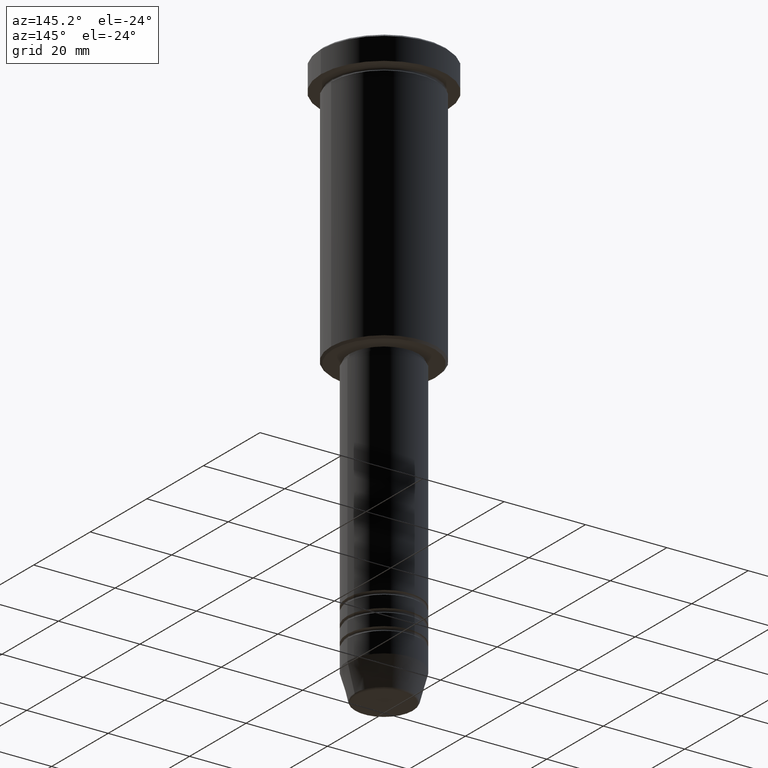
[diagram: clean part render]
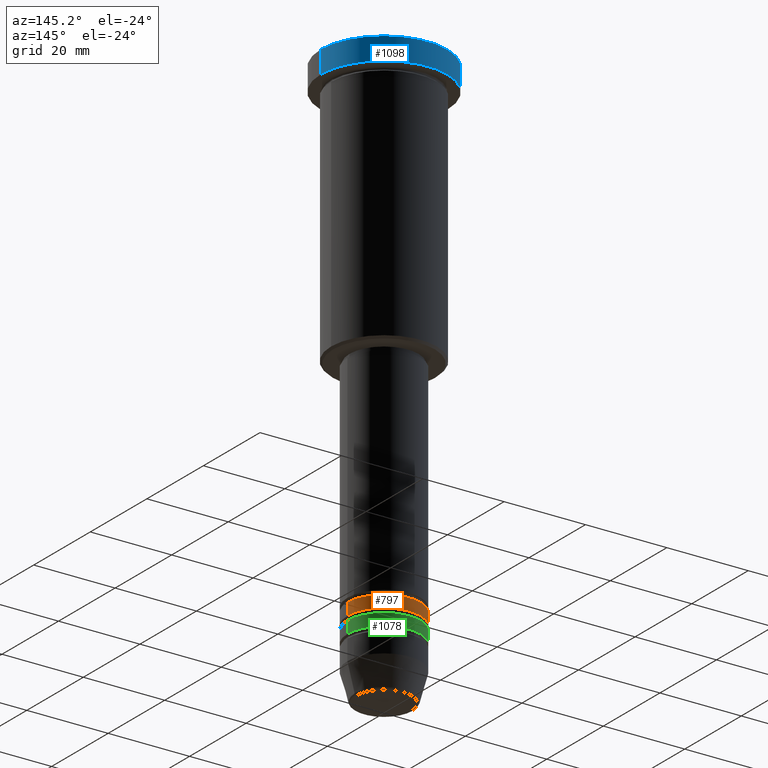
[diagram: same view with three faces highlighted in distinct colors, each labeled with its STEP entity id]
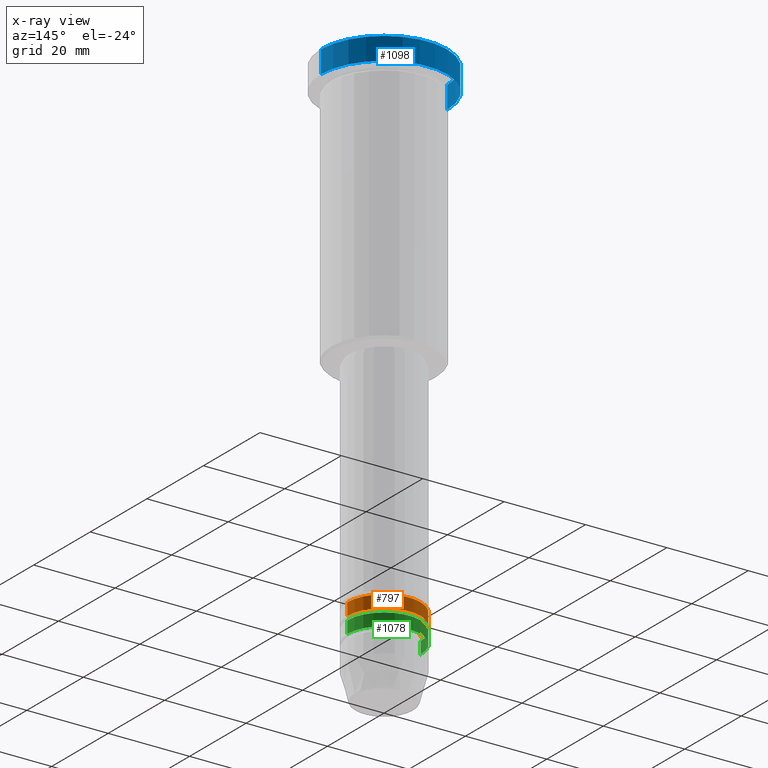
[diagram: x-ray of the same camera — body ghosted, the three highlighted faces saturated]
A machine part, auxiliary view with three faces highlighted in distinct colors.
The next image is the same camera in x-ray (body ghosted, the three faces saturated) — at least one of them is partly hidden behind the body in this view.
Their STEP definitions:

[orange] entity #797 — the highlighted cylindrical surface (partial cylindrical patch) has radius 9 mm, axis along (-0, -0, 1).
#11 = FACE_OUTER_BOUND ( 'NONE', #435, .T. ) ;
#99 = ORIENTED_EDGE ( 'NONE', *, *, #1134, .F. ) ;
#106 = AXIS2_PLACEMENT_3D ( 'NONE', #918, #674, #195 ) ;
#117 = DIRECTION ( 'NONE',  ( -0.000000000000000000, -0.000000000000000000, 1.000000000000000000 ) ) ;
#170 = AXIS2_PLACEMENT_3D ( 'NONE', #890, #734, #725 ) ;
#195 = DIRECTION ( 'NONE',  ( 1.000000000000000000, 0.000000000000000000, 0.000000000000000000 ) ) ;
#324 = DIRECTION ( 'NONE',  ( -0.000000000000000000, -0.000000000000000000, 1.000000000000000000 ) ) ;
#327 = VERTEX_POINT ( 'NONE', #911 ) ;
#352 = VECTOR ( 'NONE', #358, 1000.000000000000000 ) ;
#356 = ORIENTED_EDGE ( 'NONE', *, *, #789, .T. ) ;
#358 = DIRECTION ( 'NONE',  ( -0.000000000000000000, -0.000000000000000000, 1.000000000000000000 ) ) ;
#435 = EDGE_LOOP ( 'NONE', ( #1117, #356, #99, #726 ) ) ;
#511 = CIRCLE ( 'NONE', #170, 9.000000000000001776 ) ;
#519 = DIRECTION ( 'NONE',  ( 1.000000000000000000, 0.000000000000000000, 0.000000000000000000 ) ) ;
#534 = AXIS2_PLACEMENT_3D ( 'NONE', #1035, #324, #519 ) ;
#540 = LINE ( 'NONE', #718, #352 ) ;
#561 = EDGE_CURVE ( 'NONE', #327, #874, #511, .T. ) ;
#673 = CARTESIAN_POINT ( 'NONE',  ( 9.000000000000000000, 0.000000000000000000, -120.9999999999999005 ) ) ;
#674 = DIRECTION ( 'NONE',  ( -0.000000000000000000, -0.000000000000000000, 1.000000000000000000 ) ) ;
#705 = CARTESIAN_POINT ( 'NONE',  ( -9.000000000000000000, 1.102182119232617714E-15, -120.9999999999999005 ) ) ;
#718 = CARTESIAN_POINT ( 'NONE',  ( 9.000000000000001776, 0.000000000000000000, 0.000000000000000000 ) ) ;
#725 = DIRECTION ( 'NONE',  ( 1.000000000000000000, 0.000000000000000000, 0.000000000000000000 ) ) ;
#726 = ORIENTED_EDGE ( 'NONE', *, *, #850, .F. ) ;
#729 = VECTOR ( 'NONE', #117, 1000.000000000000000 ) ;
#734 = DIRECTION ( 'NONE',  ( -0.000000000000000000, -0.000000000000000000, 1.000000000000000000 ) ) ;
#789 = EDGE_CURVE ( 'NONE', #874, #1154, #929, .T. ) ;
#797 = ADVANCED_FACE ( 'NONE', ( #11 ), #1118, .T. ) ;
#850 = EDGE_CURVE ( 'NONE', #327, #958, #540, .T. ) ;
#874 = VERTEX_POINT ( 'NONE', #1167 ) ;
#890 = CARTESIAN_POINT ( 'NONE',  ( 0.000000000000000000, 0.000000000000000000, -123.9999999999999147 ) ) ;
#911 = CARTESIAN_POINT ( 'NONE',  ( 9.000000000000001776, 0.000000000000000000, -123.9999999999999147 ) ) ;
#918 = CARTESIAN_POINT ( 'NONE',  ( 0.000000000000000000, 0.000000000000000000, 0.000000000000000000 ) ) ;
#929 = LINE ( 'NONE', #1106, #729 ) ;
#958 = VERTEX_POINT ( 'NONE', #673 ) ;
#969 = CIRCLE ( 'NONE', #534, 9.000000000000000000 ) ;
#1035 = CARTESIAN_POINT ( 'NONE',  ( 0.000000000000000000, 0.000000000000000000, -120.9999999999999005 ) ) ;
#1106 = CARTESIAN_POINT ( 'NONE',  ( -9.000000000000001776, 1.102182119232617911E-15, 0.000000000000000000 ) ) ;
#1117 = ORIENTED_EDGE ( 'NONE', *, *, #561, .T. ) ;
#1118 = CYLINDRICAL_SURFACE ( 'NONE', #106, 9.000000000000001776 ) ;
#1134 = EDGE_CURVE ( 'NONE', #958, #1154, #969, .T. ) ;
#1154 = VERTEX_POINT ( 'NONE', #705 ) ;
#1167 = CARTESIAN_POINT ( 'NONE',  ( -9.000000000000001776, 1.102182119232617911E-15, -123.9999999999999147 ) ) ;

[blue] entity #1098 — the highlighted cylindrical surface (partial cylindrical patch) has radius 15.5 mm, axis along (-0, -0, 1).
#8 = ORIENTED_EDGE ( 'NONE', *, *, #65, .T. ) ;
#15 = CARTESIAN_POINT ( 'NONE',  ( -15.50000000000000000, 1.898202538678397557E-15, -0.5000000000000125455 ) ) ;
#53 = CARTESIAN_POINT ( 'NONE',  ( 0.000000000000000000, 0.000000000000000000, 0.000000000000000000 ) ) ;
#65 = EDGE_CURVE ( 'NONE', #724, #470, #922, .T. ) ;
#66 = ORIENTED_EDGE ( 'NONE', *, *, #339, .F. ) ;
#68 = VECTOR ( 'NONE', #1016, 1000.000000000000000 ) ;
#91 = CARTESIAN_POINT ( 'NONE',  ( 15.50000000000000000, 0.000000000000000000, 0.000000000000000000 ) ) ;
#96 = LINE ( 'NONE', #91, #68 ) ;
#97 = ORIENTED_EDGE ( 'NONE', *, *, #504, .T. ) ;
#141 = DIRECTION ( 'NONE',  ( -0.000000000000000000, -0.000000000000000000, 1.000000000000000000 ) ) ;
#145 = CYLINDRICAL_SURFACE ( 'NONE', #354, 15.50000000000000000 ) ;
#164 = VERTEX_POINT ( 'NONE', #762 ) ;
#205 = CIRCLE ( 'NONE', #873, 15.50000000000000000 ) ;
#235 = VERTEX_POINT ( 'NONE', #15 ) ;
#339 = EDGE_CURVE ( 'NONE', #724, #164, #96, .T. ) ;
#354 = AXIS2_PLACEMENT_3D ( 'NONE', #53, #141, #1031 ) ;
#370 = CARTESIAN_POINT ( 'NONE',  ( -15.50000000000000000, 1.898202538678397557E-15, 0.000000000000000000 ) ) ;
#392 = LINE ( 'NONE', #370, #950 ) ;
#470 = VERTEX_POINT ( 'NONE', #1053 ) ;
#504 = EDGE_CURVE ( 'NONE', #235, #164, #205, .T. ) ;
#526 = DIRECTION ( 'NONE',  ( 0.000000000000000000, 0.000000000000000000, -1.000000000000000000 ) ) ;
#601 = FACE_OUTER_BOUND ( 'NONE', #618, .T. ) ;
#618 = EDGE_LOOP ( 'NONE', ( #8, #860, #97, #66 ) ) ;
#671 = DIRECTION ( 'NONE',  ( 1.000000000000000000, 0.000000000000000000, 0.000000000000000000 ) ) ;
#724 = VERTEX_POINT ( 'NONE', #736 ) ;
#732 = DIRECTION ( 'NONE',  ( -0.000000000000000000, -0.000000000000000000, 1.000000000000000000 ) ) ;
#736 = CARTESIAN_POINT ( 'NONE',  ( 15.50000000000000000, 0.000000000000000000, -5.999999999999995559 ) ) ;
#743 = EDGE_CURVE ( 'NONE', #470, #235, #392, .T. ) ;
#762 = CARTESIAN_POINT ( 'NONE',  ( 15.50000000000000000, 0.000000000000000000, -0.5000000000000125455 ) ) ;
#832 = DIRECTION ( 'NONE',  ( -0.000000000000000000, -0.000000000000000000, 1.000000000000000000 ) ) ;
#860 = ORIENTED_EDGE ( 'NONE', *, *, #743, .T. ) ;
#873 = AXIS2_PLACEMENT_3D ( 'NONE', #974, #526, #1007 ) ;
#922 = CIRCLE ( 'NONE', #940, 15.50000000000000000 ) ;
#940 = AXIS2_PLACEMENT_3D ( 'NONE', #1006, #732, #671 ) ;
#950 = VECTOR ( 'NONE', #832, 1000.000000000000000 ) ;
#974 = CARTESIAN_POINT ( 'NONE',  ( 0.000000000000000000, 0.000000000000000000, -0.5000000000000125455 ) ) ;
#1006 = CARTESIAN_POINT ( 'NONE',  ( 0.000000000000000000, 0.000000000000000000, -5.999999999999995559 ) ) ;
#1007 = DIRECTION ( 'NONE',  ( 1.000000000000000000, 0.000000000000000000, 0.000000000000000000 ) ) ;
#1016 = DIRECTION ( 'NONE',  ( -0.000000000000000000, -0.000000000000000000, 1.000000000000000000 ) ) ;
#1031 = DIRECTION ( 'NONE',  ( 1.000000000000000000, 0.000000000000000000, 0.000000000000000000 ) ) ;
#1053 = CARTESIAN_POINT ( 'NONE',  ( -15.50000000000000000, 1.898202538678397557E-15, -5.999999999999995559 ) ) ;
#1098 = ADVANCED_FACE ( 'NONE', ( #601 ), #145, .T. ) ;

[green] entity #1078 — the highlighted cylindrical surface (partial cylindrical patch) has radius 9 mm, axis along (-0, -0, 1).
#13 = DIRECTION ( 'NONE',  ( 1.000000000000000000, 0.000000000000000000, 0.000000000000000000 ) ) ;
#22 = FACE_OUTER_BOUND ( 'NONE', #629, .T. ) ;
#41 = EDGE_CURVE ( 'NONE', #944, #469, #92, .T. ) ;
#82 = ORIENTED_EDGE ( 'NONE', *, *, #41, .T. ) ;
#92 = LINE ( 'NONE', #1086, #1104 ) ;
#109 = AXIS2_PLACEMENT_3D ( 'NONE', #930, #401, #1004 ) ;
#114 = CARTESIAN_POINT ( 'NONE',  ( 0.000000000000000000, 0.000000000000000000, -127.9999999999998863 ) ) ;
#168 = AXIS2_PLACEMENT_3D ( 'NONE', #114, #476, #13 ) ;
#217 = CARTESIAN_POINT ( 'NONE',  ( 9.000000000000001776, 0.000000000000000000, -127.9999999999998863 ) ) ;
#260 = LINE ( 'NONE', #901, #638 ) ;
#275 = DIRECTION ( 'NONE',  ( -0.000000000000000000, -0.000000000000000000, 1.000000000000000000 ) ) ;
#297 = AXIS2_PLACEMENT_3D ( 'NONE', #841, #387, #330 ) ;
#305 = ORIENTED_EDGE ( 'NONE', *, *, #920, .F. ) ;
#311 = EDGE_CURVE ( 'NONE', #442, #944, #351, .T. ) ;
#330 = DIRECTION ( 'NONE',  ( 1.000000000000000000, 0.000000000000000000, 0.000000000000000000 ) ) ;
#335 = CIRCLE ( 'NONE', #297, 9.000000000000000000 ) ;
#351 = CIRCLE ( 'NONE', #168, 9.000000000000001776 ) ;
#387 = DIRECTION ( 'NONE',  ( -0.000000000000000000, -0.000000000000000000, 1.000000000000000000 ) ) ;
#394 = CYLINDRICAL_SURFACE ( 'NONE', #109, 9.000000000000001776 ) ;
#401 = DIRECTION ( 'NONE',  ( -0.000000000000000000, -0.000000000000000000, 1.000000000000000000 ) ) ;
#442 = VERTEX_POINT ( 'NONE', #217 ) ;
#469 = VERTEX_POINT ( 'NONE', #520 ) ;
#476 = DIRECTION ( 'NONE',  ( -0.000000000000000000, -0.000000000000000000, 1.000000000000000000 ) ) ;
#520 = CARTESIAN_POINT ( 'NONE',  ( -9.000000000000000000, 1.102182119232617714E-15, -124.9999999999998863 ) ) ;
#549 = EDGE_CURVE ( 'NONE', #648, #469, #335, .T. ) ;
#573 = CARTESIAN_POINT ( 'NONE',  ( -9.000000000000001776, 1.102182119232617911E-15, -127.9999999999998863 ) ) ;
#629 = EDGE_LOOP ( 'NONE', ( #1029, #82, #702, #305 ) ) ;
#636 = DIRECTION ( 'NONE',  ( -0.000000000000000000, -0.000000000000000000, 1.000000000000000000 ) ) ;
#638 = VECTOR ( 'NONE', #636, 1000.000000000000000 ) ;
#648 = VERTEX_POINT ( 'NONE', #723 ) ;
#702 = ORIENTED_EDGE ( 'NONE', *, *, #549, .F. ) ;
#723 = CARTESIAN_POINT ( 'NONE',  ( 9.000000000000000000, 0.000000000000000000, -124.9999999999998863 ) ) ;
#841 = CARTESIAN_POINT ( 'NONE',  ( 0.000000000000000000, 0.000000000000000000, -124.9999999999998863 ) ) ;
#901 = CARTESIAN_POINT ( 'NONE',  ( 9.000000000000001776, 0.000000000000000000, 0.000000000000000000 ) ) ;
#920 = EDGE_CURVE ( 'NONE', #442, #648, #260, .T. ) ;
#930 = CARTESIAN_POINT ( 'NONE',  ( 0.000000000000000000, 0.000000000000000000, 0.000000000000000000 ) ) ;
#944 = VERTEX_POINT ( 'NONE', #573 ) ;
#1004 = DIRECTION ( 'NONE',  ( 1.000000000000000000, 0.000000000000000000, 0.000000000000000000 ) ) ;
#1029 = ORIENTED_EDGE ( 'NONE', *, *, #311, .T. ) ;
#1078 = ADVANCED_FACE ( 'NONE', ( #22 ), #394, .T. ) ;
#1086 = CARTESIAN_POINT ( 'NONE',  ( -9.000000000000001776, 1.102182119232617911E-15, 0.000000000000000000 ) ) ;
#1104 = VECTOR ( 'NONE', #275, 1000.000000000000000 ) ;